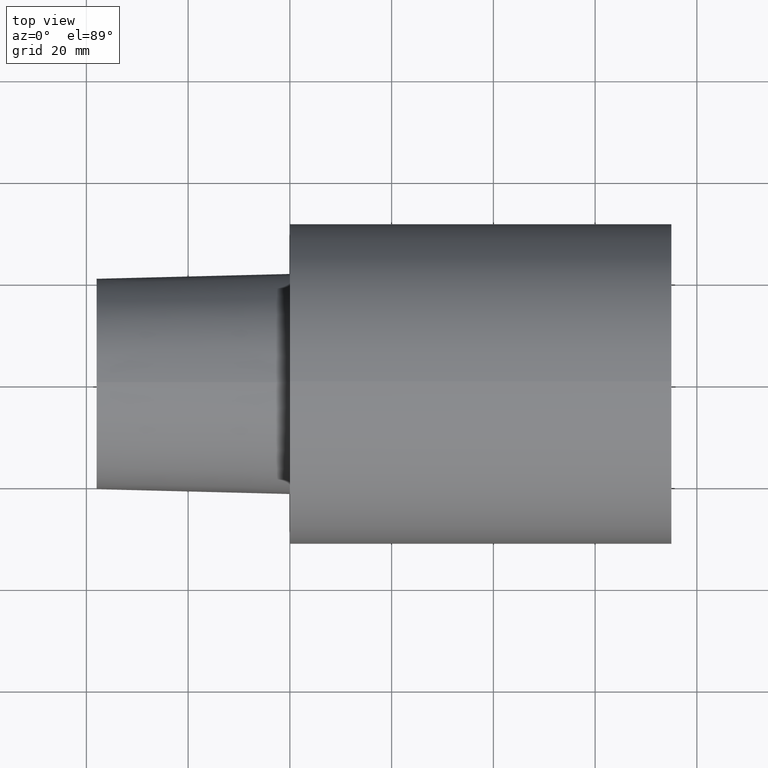
[diagram: clean part render]
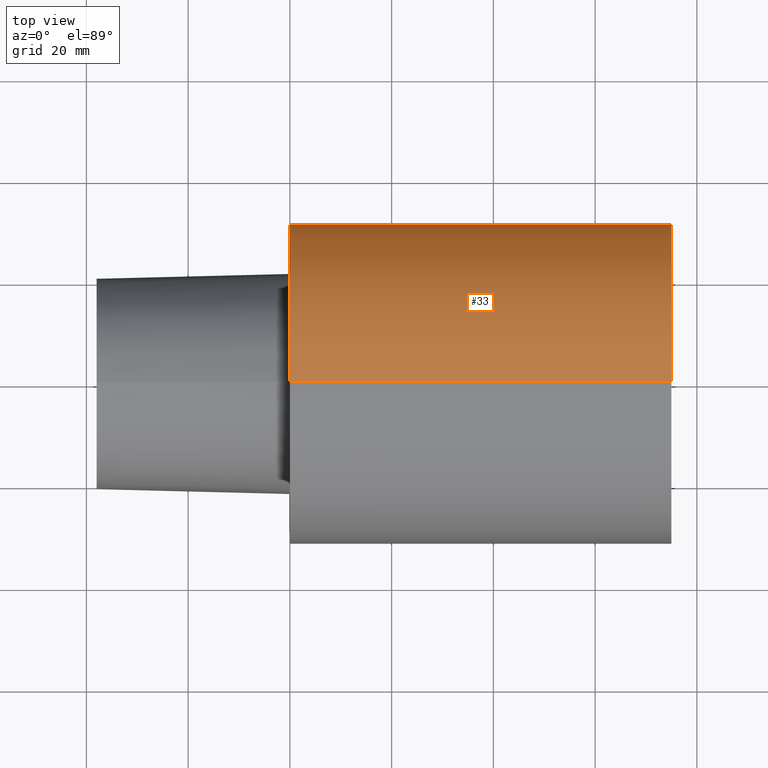
[diagram: same view with one face highlighted and labeled with its STEP entity id]
A machine part, top view. The second image highlights one B-rep face of the part: STEP entity #33.
In plain terms, the highlighted cylindrical surface (partial cylindrical patch) has radius 31.5 mm, axis along (-1, 0, 0).
Its self-contained STEP definition (entity closure, byte-faithful):
#5 = DIRECTION ( 'NONE',  ( 0.000000000000000000, 0.000000000000000000, 1.000000000000000000 ) ) ;
#9 = CARTESIAN_POINT ( 'NONE',  ( 74.99999992349999900, 0.000000000000000000, 31.49999996787000001 ) ) ;
#11 = DIRECTION ( 'NONE',  ( -1.000000000000000000, 0.000000000000000000, 0.000000000000000000 ) ) ;
#17 = EDGE_CURVE ( 'NONE', #248, #69, #107, .T. ) ;
#23 = DIRECTION ( 'NONE',  ( -1.000000000000000000, 0.000000000000000000, 0.000000000000000000 ) ) ;
#29 = CIRCLE ( 'NONE', #38, 31.49999996787000001 ) ;
#31 = CARTESIAN_POINT ( 'NONE',  ( -37.99999996124000035, 0.000000000000000000, 0.000000000000000000 ) ) ;
#32 = VERTEX_POINT ( 'NONE', #88 ) ;
#33 = ADVANCED_FACE ( 'NONE', ( #246 ), #224, .T. ) ;
#35 = CARTESIAN_POINT ( 'NONE',  ( 0.000000000000000000, 0.000000000000000000, 0.000000000000000000 ) ) ;
#38 = AXIS2_PLACEMENT_3D ( 'NONE', #35, #102, #171 ) ;
#39 = DIRECTION ( 'NONE',  ( -1.000000000000000000, 0.000000000000000000, 0.000000000000000000 ) ) ;
#41 = EDGE_CURVE ( 'NONE', #209, #32, #56, .T. ) ;
#51 = AXIS2_PLACEMENT_3D ( 'NONE', #117, #39, #5 ) ;
#56 = LINE ( 'NONE', #251, #59 ) ;
#59 = VECTOR ( 'NONE', #23, 1000.000000000000000 ) ;
#69 = VERTEX_POINT ( 'NONE', #154 ) ;
#79 = AXIS2_PLACEMENT_3D ( 'NONE', #31, #188, #151 ) ;
#88 = CARTESIAN_POINT ( 'NONE',  ( 0.000000000000000000, 3.857637413379370248E-15, -31.49999996787000001 ) ) ;
#90 = EDGE_CURVE ( 'NONE', #69, #32, #29, .T. ) ;
#102 = DIRECTION ( 'NONE',  ( -1.000000000000000000, 0.000000000000000000, 0.000000000000000000 ) ) ;
#107 = LINE ( 'NONE', #166, #245 ) ;
#117 = CARTESIAN_POINT ( 'NONE',  ( 74.99999992349999900, 0.000000000000000000, 0.000000000000000000 ) ) ;
#124 = ORIENTED_EDGE ( 'NONE', *, *, #90, .F. ) ;
#129 = ORIENTED_EDGE ( 'NONE', *, *, #41, .T. ) ;
#144 = EDGE_CURVE ( 'NONE', #248, #209, #234, .T. ) ;
#151 = DIRECTION ( 'NONE',  ( 0.000000000000000000, 0.000000000000000000, 1.000000000000000000 ) ) ;
#154 = CARTESIAN_POINT ( 'NONE',  ( 0.000000000000000000, 0.000000000000000000, 31.49999996787000001 ) ) ;
#166 = CARTESIAN_POINT ( 'NONE',  ( -37.99999996124000035, 0.000000000000000000, 31.49999996787000001 ) ) ;
#169 = ORIENTED_EDGE ( 'NONE', *, *, #144, .T. ) ;
#171 = DIRECTION ( 'NONE',  ( 0.000000000000000000, 0.000000000000000000, 1.000000000000000000 ) ) ;
#188 = DIRECTION ( 'NONE',  ( -1.000000000000000000, 0.000000000000000000, 0.000000000000000000 ) ) ;
#206 = ORIENTED_EDGE ( 'NONE', *, *, #17, .F. ) ;
#209 = VERTEX_POINT ( 'NONE', #229 ) ;
#224 = CYLINDRICAL_SURFACE ( 'NONE', #79, 31.49999996787000001 ) ;
#228 = EDGE_LOOP ( 'NONE', ( #169, #129, #124, #206 ) ) ;
#229 = CARTESIAN_POINT ( 'NONE',  ( 74.99999992349999900, 3.857637413379370248E-15, -31.49999996787000001 ) ) ;
#234 = CIRCLE ( 'NONE', #51, 31.49999996787000001 ) ;
#245 = VECTOR ( 'NONE', #11, 1000.000000000000000 ) ;
#246 = FACE_OUTER_BOUND ( 'NONE', #228, .T. ) ;
#248 = VERTEX_POINT ( 'NONE', #9 ) ;
#251 = CARTESIAN_POINT ( 'NONE',  ( -37.99999996124000035, 3.857637413379370248E-15, -31.49999996787000001 ) ) ;